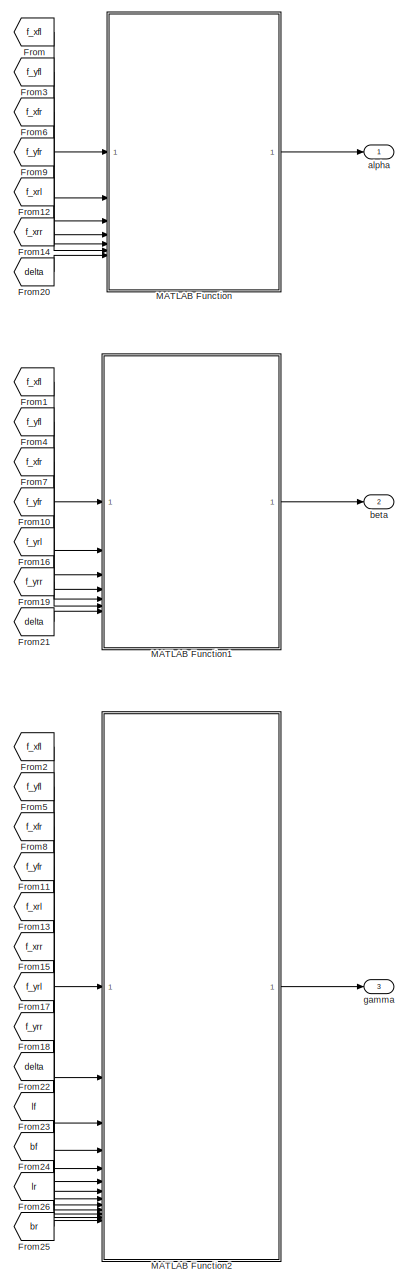
[diagram: root canvas - part 1/2, right side, full height]
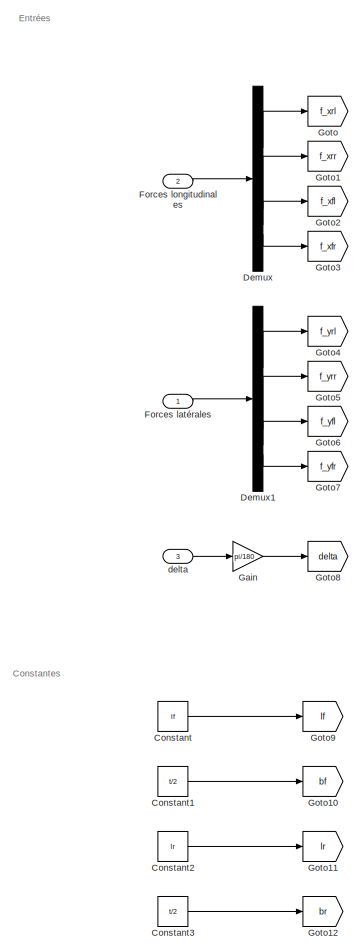
[diagram: root canvas - part 2/2, middle left region]
MODEL slx_2b23239c5646
KIND model
CONFIG AbsTol = auto
CONFIG EnableMultiTasking = off
CONFIG FixedStep = Ts
CONFIG MaxStep = auto
CONFIG MinStep = auto
CONFIG RelTol = 1e-3
CONFIG SampleTimeConstraint = Unconstrained
CONFIG SolverName = FixedStepAuto
CONFIG StartTime = 0.0
CONFIG StopTime = 10.0
BLOCK [Constant] Constant
  Value = lf
BLOCK [Constant] Constant1
  Value = t/2
BLOCK [Constant] Constant2
  Value = lr
BLOCK [Constant] Constant3
  Value = t/2
BLOCK [Demux] Demux
BLOCK [Demux] Demux1
BLOCK [Inport] Forces latérales
BLOCK [Inport] Forces longitudinales
  Port = 2
BLOCK [From] From
  GotoTag = f_xfl
BLOCK [From] From1
  GotoTag = f_xfl
BLOCK [From] From10
  GotoTag = f_yfr
BLOCK [From] From11
  GotoTag = f_yfr
BLOCK [From] From12
  GotoTag = f_xrl
BLOCK [From] From13
  GotoTag = f_xrl
BLOCK [From] From14
  GotoTag = f_xrr
BLOCK [From] From15
  GotoTag = f_xrr
BLOCK [From] From16
  GotoTag = f_yrl
BLOCK [From] From17
  GotoTag = f_yrl
BLOCK [From] From18
  GotoTag = f_yrr
BLOCK [From] From19
  GotoTag = f_yrr
BLOCK [From] From2
  GotoTag = f_xfl
BLOCK [From] From20
  GotoTag = delta
BLOCK [From] From21
  GotoTag = delta
BLOCK [From] From22
  GotoTag = delta
BLOCK [From] From23
  GotoTag = lf
BLOCK [From] From24
  GotoTag = bf
BLOCK [From] From25
  GotoTag = br
BLOCK [From] From26
  GotoTag = lr
BLOCK [From] From3
  GotoTag = f_yfl
BLOCK [From] From4
  GotoTag = f_yfl
BLOCK [From] From5
  GotoTag = f_yfl
BLOCK [From] From6
  GotoTag = f_xfr
BLOCK [From] From7
  GotoTag = f_xfr
BLOCK [From] From8
  GotoTag = f_xfr
BLOCK [From] From9
  GotoTag = f_yfr
BLOCK [Gain] Gain
  Gain = pi/180
BLOCK [Goto] Goto
  GotoTag = f_xrl
BLOCK [Goto] Goto1
  GotoTag = f_xrr
BLOCK [Goto] Goto10
  GotoTag = bf
BLOCK [Goto] Goto11
  GotoTag = lr
BLOCK [Goto] Goto12
  GotoTag = br
BLOCK [Goto] Goto2
  GotoTag = f_xfl
BLOCK [Goto] Goto3
  GotoTag = f_xfr
BLOCK [Goto] Goto4
  GotoTag = f_yrl
BLOCK [Goto] Goto5
  GotoTag = f_yrr
BLOCK [Goto] Goto6
  GotoTag = f_yfl
BLOCK [Goto] Goto7
  GotoTag = f_yfr
BLOCK [Goto] Goto8
  GotoTag = delta
BLOCK [Goto] Goto9
  GotoTag = lf
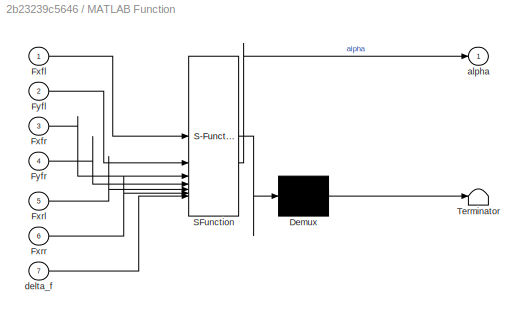
BLOCK [SubSystem] MATLAB Function
  ErrorFcn = Stateflow.Translate.translate
  PermitHierarchicalResolution = ExplicitOnly
  SFBlockType = MATLAB Function
  TreatAsAtomicUnit = on
BLOCK [Demux] MATLAB Function/ Demux 
  Outputs = 1
BLOCK [S-Function] MATLAB Function/ SFunction 
  EnableBusSupport = on
  FunctionName = sf_sfun
  PortCounts = [7 2]
  SFcnIsStateOwnerBlock = off
  SFunctionDeploymentMode = off
  Tag = Stateflow S-Function 2
BLOCK [Terminator] MATLAB Function/ Terminator 
BLOCK [Inport] MATLAB Function/Fxfl
BLOCK [Inport] MATLAB Function/Fxfr
  Port = 3
BLOCK [Inport] MATLAB Function/Fxrl
  Port = 5
BLOCK [Inport] MATLAB Function/Fxrr
  Port = 6
BLOCK [Inport] MATLAB Function/Fyfl
  Port = 2
BLOCK [Inport] MATLAB Function/Fyfr
  Port = 4
BLOCK [Outport] MATLAB Function/alpha
BLOCK [Inport] MATLAB Function/delta_f
  Port = 7
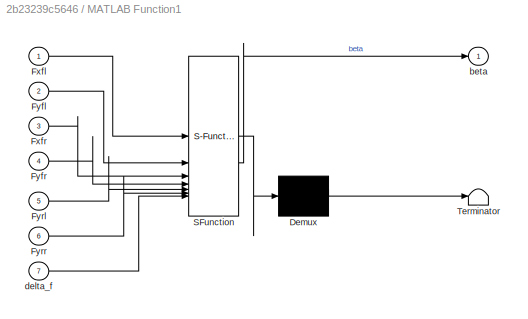
BLOCK [SubSystem] MATLAB Function1
  ErrorFcn = Stateflow.Translate.translate
  PermitHierarchicalResolution = ExplicitOnly
  SFBlockType = MATLAB Function
  TreatAsAtomicUnit = on
BLOCK [Demux] MATLAB Function1/ Demux 
  Outputs = 1
BLOCK [S-Function] MATLAB Function1/ SFunction 
  EnableBusSupport = on
  FunctionName = sf_sfun
  PortCounts = [7 2]
  SFcnIsStateOwnerBlock = off
  SFunctionDeploymentMode = off
  Tag = Stateflow S-Function 1
BLOCK [Terminator] MATLAB Function1/ Terminator 
BLOCK [Inport] MATLAB Function1/Fxfl
BLOCK [Inport] MATLAB Function1/Fxfr
  Port = 3
BLOCK [Inport] MATLAB Function1/Fyfl
  Port = 2
BLOCK [Inport] MATLAB Function1/Fyfr
  Port = 4
BLOCK [Inport] MATLAB Function1/Fyrl
  Port = 5
BLOCK [Inport] MATLAB Function1/Fyrr
  Port = 6
BLOCK [Outport] MATLAB Function1/beta
BLOCK [Inport] MATLAB Function1/delta_f
  Port = 7
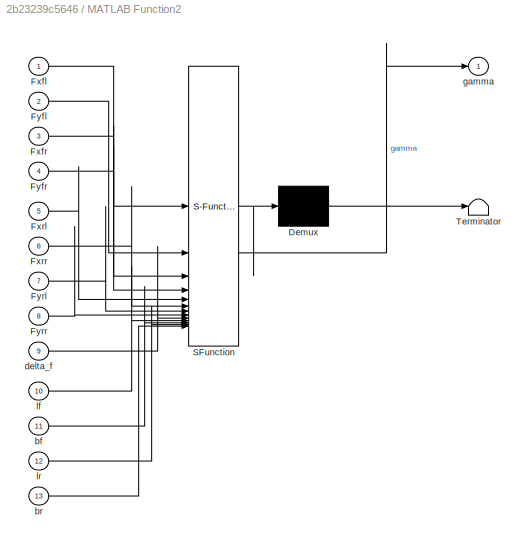
BLOCK [SubSystem] MATLAB Function2
  ErrorFcn = Stateflow.Translate.translate
  PermitHierarchicalResolution = ExplicitOnly
  SFBlockType = MATLAB Function
  TreatAsAtomicUnit = on
BLOCK [Demux] MATLAB Function2/ Demux 
  Outputs = 1
BLOCK [S-Function] MATLAB Function2/ SFunction 
  EnableBusSupport = on
  FunctionName = sf_sfun
  PortCounts = [13 2]
  SFcnIsStateOwnerBlock = off
  SFunctionDeploymentMode = off
  Tag = Stateflow S-Function 3
BLOCK [Terminator] MATLAB Function2/ Terminator 
BLOCK [Inport] MATLAB Function2/Fxfl
BLOCK [Inport] MATLAB Function2/Fxfr
  Port = 3
BLOCK [Inport] MATLAB Function2/Fxrl
  Port = 5
BLOCK [Inport] MATLAB Function2/Fxrr
  Port = 6
BLOCK [Inport] MATLAB Function2/Fyfl
  Port = 2
BLOCK [Inport] MATLAB Function2/Fyfr
  Port = 4
BLOCK [Inport] MATLAB Function2/Fyrl
  Port = 7
BLOCK [Inport] MATLAB Function2/Fyrr
  Port = 8
BLOCK [Inport] MATLAB Function2/bf
  Port = 11
BLOCK [Inport] MATLAB Function2/br
  Port = 13
BLOCK [Inport] MATLAB Function2/delta_f
  Port = 9
BLOCK [Outport] MATLAB Function2/gamma
BLOCK [Inport] MATLAB Function2/lf
  Port = 10
BLOCK [Inport] MATLAB Function2/lr
  Port = 12
BLOCK [Outport] alpha
BLOCK [Outport] beta
  Port = 2
BLOCK [Inport] delta
  Port = 3
BLOCK [Outport] gamma
  Port = 3
ANNOTATION (root): Constantes
ANNOTATION (root): Entrées
LINE Constant1:1 -> Goto10:1
LINE Constant2:1 -> Goto11:1
LINE Constant3:1 -> Goto12:1
LINE Constant:1 -> Goto9:1
LINE Demux1:1 -> Goto4:1
LINE Demux1:2 -> Goto5:1
LINE Demux1:3 -> Goto6:1
LINE Demux1:4 -> Goto7:1
LINE Demux:1 -> Goto:1
LINE Demux:2 -> Goto1:1
LINE Demux:3 -> Goto2:1
LINE Demux:4 -> Goto3:1
LINE Forces latérales:1 -> Demux1:1
LINE Forces longitudinales:1 -> Demux:1
LINE From10:1 -> MATLAB Function1:4
LINE From11:1 -> MATLAB Function2:4
LINE From12:1 -> MATLAB Function:5
LINE From13:1 -> MATLAB Function2:5
LINE From14:1 -> MATLAB Function:6
LINE From15:1 -> MATLAB Function2:6
LINE From16:1 -> MATLAB Function1:5
LINE From17:1 -> MATLAB Function2:7
LINE From18:1 -> MATLAB Function2:8
LINE From19:1 -> MATLAB Function1:6
LINE From1:1 -> MATLAB Function1:1
LINE From20:1 -> MATLAB Function:7
LINE From21:1 -> MATLAB Function1:7
LINE From22:1 -> MATLAB Function2:9
LINE From23:1 -> MATLAB Function2:10
LINE From24:1 -> MATLAB Function2:11
LINE From25:1 -> MATLAB Function2:13
LINE From26:1 -> MATLAB Function2:12
LINE From2:1 -> MATLAB Function2:1
LINE From3:1 -> MATLAB Function:2
LINE From4:1 -> MATLAB Function1:2
LINE From5:1 -> MATLAB Function2:2
LINE From6:1 -> MATLAB Function:3
LINE From7:1 -> MATLAB Function1:3
LINE From8:1 -> MATLAB Function2:3
LINE From9:1 -> MATLAB Function:4
LINE From:1 -> MATLAB Function:1
LINE Gain:1 -> Goto8:1
LINE MATLAB Function1:1 -> beta:1
LINE MATLAB Function2:1 -> gamma:1
LINE MATLAB Function:1 -> alpha:1
LINE delta:1 -> Gain:1
CHART MATLAB Function1 states=1 transitions=1
  STATE_LABEL 'eML_blk_kernel()'
  STATE_LABEL 'SCRIPT:\nfunction beta = beta(Fxfl, Fyfl, Fxfr, Fyfr, Fyrl, Fyrr, delta_f)\n% Calcule le terme de droite de la deuxième équation du système\n% beta = Fxfl*sin(delta_f) + Fyfl*cos(delta_f) + Fxfr*sin(delta_f) + Fyfr*cos(delta_f) + Fyrl + Fyrr\n\nbeta = Fxfl*sin(delta_f) + Fyfl*cos(delta_f) + ...\n       Fxfr*sin(delta_f) + Fyfr*cos(delta_f) + ...\n       Fyrl + Fyrr;\nend\n'
CHART MATLAB Function states=1 transitions=1
  STATE_LABEL 'eML_blk_kernel()'
  STATE_LABEL 'SCRIPT:\nfunction alpha = alpha(Fxfl, Fyfl, Fxfr, Fyfr, Fxrl, Fxrr, delta_f)\n% Calcule le terme de droite de la première équation du système\n% alpha = Fxfl*cos(delta_f) - Fyfl*sin(delta_f) + Fxfr*cos(delta_f) - Fyfr*sin(delta_f) + Fxrl + Fxrr\n\nalpha = Fxfl*cos(delta_f) - Fyfl*sin(delta_f) + ...\n        Fxfr*cos(delta_f) - Fyfr*sin(delta_f) + ...\n        Fxrl + Fxrr;\nend\n'
CHART MATLAB Function2 states=1 transitions=1
  STATE_LABEL 'eML_blk_kernel()'
  STATE_LABEL 'SCRIPT:\nfunction gamma = gamma(Fxfl, Fyfl, Fxfr, Fyfr, Fxrl, Fxrr, Fyrl, Fyrr, delta_f, lf, bf, lr, br)\n% Calcule le terme de droite de la troisième équation du système\n% gamma = lf*(Fxfl*sin(delta_f) + Fxfr*sin(delta_f) + Fyfl*cos(delta_f) + Fyfr*cos(delta_f)) ...\n%       + bf*(-Fxfl*cos(delta_f) + Fxfr*cos(delta_f) + Fyfl*sin(delta_f) - Fyfr*sin(delta_f)) ...\n%       - lr*(Fyrl + Fyrr) - br*(Fxr...<+253ch>'
CHART  states=0 transitions=0
CHART  states=0 transitions=0
CHART  states=0 transitions=0
